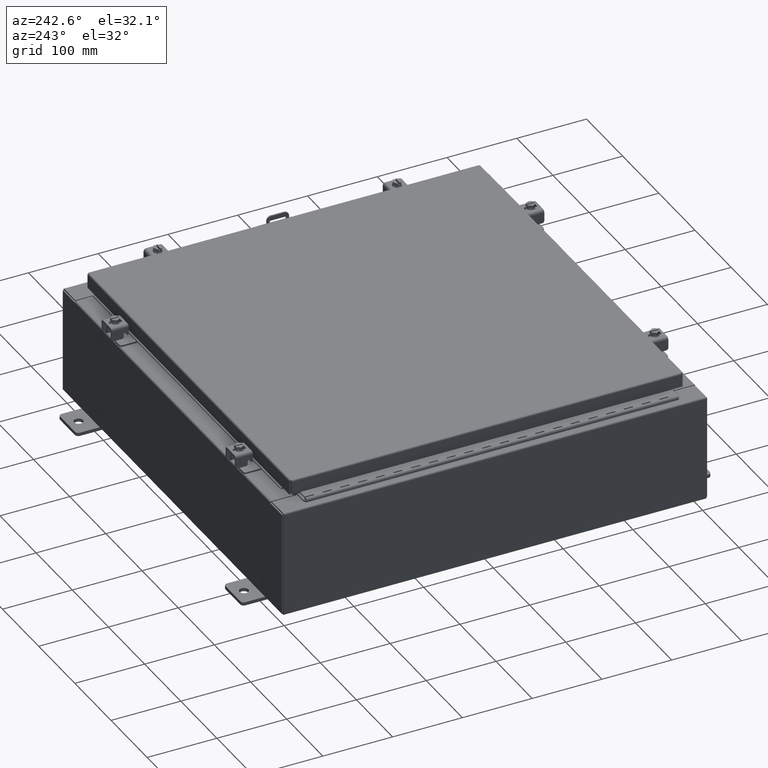
[diagram: clean part render]
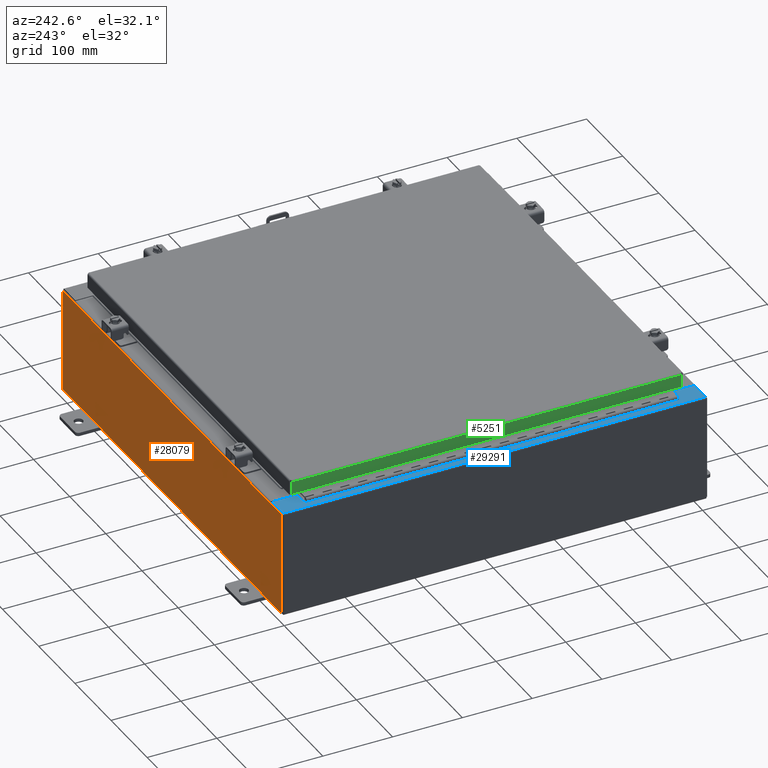
[diagram: same view with three faces highlighted in distinct colors, each labeled with its STEP entity id]
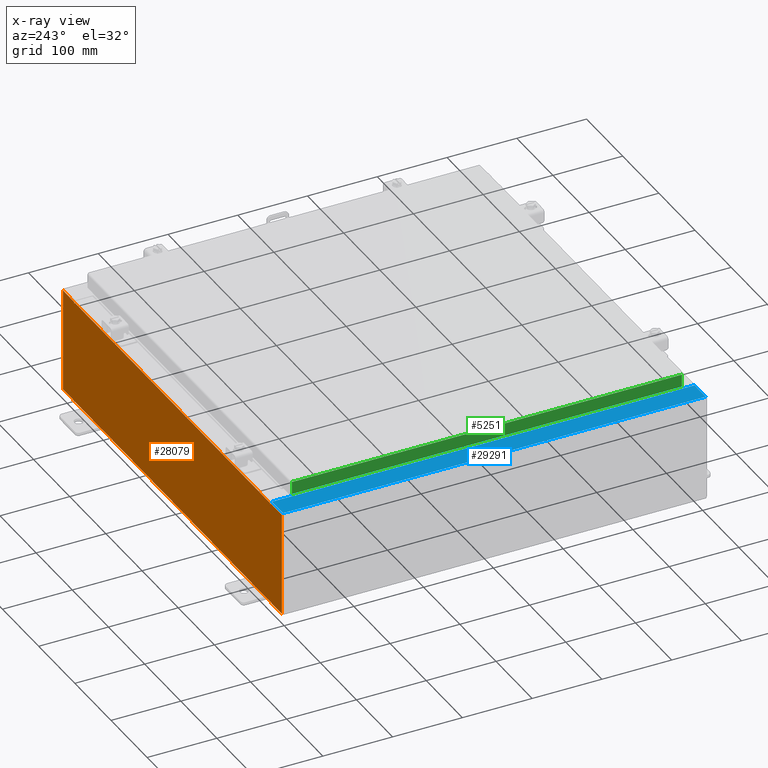
[diagram: x-ray of the same camera — body ghosted, the three highlighted faces saturated]
A machine part, auxiliary view with three faces highlighted in distinct colors.
The next image is the same camera in x-ray (body ghosted, the three faces saturated) — at least one of them is partly hidden behind the body in this view.
Their STEP definitions:

[orange] entity #28079 — the highlighted planar face has unit normal (0, -1, 0).
#603 = EDGE_CURVE ( 'NONE', #32378, #27819, #5643, .T. ) ;
#630 = CIRCLE ( 'NONE', #6769, 0.01867499999999949400 ) ;
#851 = DIRECTION ( 'NONE',  ( 0.0000000000000000000, 0.0000000000000000000, -1.000000000000000000 ) ) ;
#1754 = VERTEX_POINT ( 'NONE', #9224 ) ;
#1974 = DIRECTION ( 'NONE',  ( -0.0000000000000000000, 1.000000000000000000, -0.0000000000000000000 ) ) ;
#2557 = ORIENTED_EDGE ( 'NONE', *, *, #12558, .T. ) ;
#2664 = DIRECTION ( 'NONE',  ( 0.0000000000000000000, 0.0000000000000000000, 1.000000000000000000 ) ) ;
#3406 = EDGE_CURVE ( 'NONE', #3450, #27630, #17485, .T. ) ;
#3415 = EDGE_CURVE ( 'NONE', #30876, #10852, #10861, .T. ) ;
#3450 = VERTEX_POINT ( 'NONE', #7106 ) ;
#3793 = EDGE_CURVE ( 'NONE', #10852, #26741, #630, .T. ) ;
#3868 = LINE ( 'NONE', #12191, #4650 ) ;
#4433 = VECTOR ( 'NONE', #16633, 39.37007874015748100 ) ;
#4650 = VECTOR ( 'NONE', #14684, 39.37007874015748100 ) ;
#4669 = VERTEX_POINT ( 'NONE', #27057 ) ;
#4795 = CARTESIAN_POINT ( 'NONE',  ( -11.92530000000000000, 0.0000000000000000000, 2.925300000000000500 ) ) ;
#5393 = LINE ( 'NONE', #20900, #31251 ) ;
#5435 = FACE_OUTER_BOUND ( 'NONE', #13079, .T. ) ;
#5643 = LINE ( 'NONE', #4795, #31491 ) ;
#5761 = VECTOR ( 'NONE', #31268, 39.37007874015748100 ) ;
#5955 = CARTESIAN_POINT ( 'NONE',  ( 10.67455000000000200, 0.0000000000000000000, 2.925300000000000500 ) ) ;
#6769 = AXIS2_PLACEMENT_3D ( 'NONE', #11051, #28566, #13562 ) ;
#7106 = CARTESIAN_POINT ( 'NONE',  ( -10.63720000000000400, -0.0000000000000000000, 2.874950000000000600 ) ) ;
#7357 = ORIENTED_EDGE ( 'NONE', *, *, #8192, .F. ) ;
#7386 = DIRECTION ( 'NONE',  ( -0.0000000000000000000, -0.0000000000000000000, 1.000000000000000000 ) ) ;
#8192 = EDGE_CURVE ( 'NONE', #26741, #9663, #14114, .T. ) ;
#8733 = LINE ( 'NONE', #9923, #21275 ) ;
#8998 = ORIENTED_EDGE ( 'NONE', *, *, #31282, .F. ) ;
#9224 = CARTESIAN_POINT ( 'NONE',  ( -11.92530000000000000, 0.0000000000000000000, -2.925299999999999600 ) ) ;
#9246 = ORIENTED_EDGE ( 'NONE', *, *, #3793, .F. ) ;
#9269 = LINE ( 'NONE', #17657, #15145 ) ;
#9458 = ORIENTED_EDGE ( 'NONE', *, *, #24867, .T. ) ;
#9663 = VERTEX_POINT ( 'NONE', #13102 ) ;
#9923 = CARTESIAN_POINT ( 'NONE',  ( -11.92530000000000000, 0.0000000000000000000, 2.925300000000000500 ) ) ;
#10570 = PLANE ( 'NONE',  #30173 ) ;
#10852 = VERTEX_POINT ( 'NONE', #14648 ) ;
#10861 = LINE ( 'NONE', #13904, #23374 ) ;
#11051 = CARTESIAN_POINT ( 'NONE',  ( 10.65587500000000200, 0.0000000000000000000, 2.874950000000000600 ) ) ;
#11273 = CARTESIAN_POINT ( 'NONE',  ( 11.92530000000000000, 0.0000000000000000000, -2.925299999999999600 ) ) ;
#11537 = EDGE_CURVE ( 'NONE', #1754, #32378, #8733, .T. ) ;
#11853 = CARTESIAN_POINT ( 'NONE',  ( 10.63720000000000400, 0.0000000000000000000, 0.0000000000000000000 ) ) ;
#11981 = CARTESIAN_POINT ( 'NONE',  ( -10.67455000000000200, 0.0000000000000000000, 2.925300000000000500 ) ) ;
#12191 = CARTESIAN_POINT ( 'NONE',  ( -11.92530000000000000, 0.0000000000000000000, 2.925300000000000500 ) ) ;
#12282 = CARTESIAN_POINT ( 'NONE',  ( 10.63720000000000400, 0.0000000000000000000, 2.874950000000000600 ) ) ;
#12376 = DIRECTION ( 'NONE',  ( 1.000000000000000000, 0.0000000000000000000, 0.0000000000000000000 ) ) ;
#12558 = EDGE_CURVE ( 'NONE', #4669, #9663, #26276, .T. ) ;
#12957 = ORIENTED_EDGE ( 'NONE', *, *, #21046, .T. ) ;
#13075 = DIRECTION ( 'NONE',  ( 0.0000000000000000000, -0.0000000000000000000, -1.000000000000000000 ) ) ;
#13079 = EDGE_LOOP ( 'NONE', ( #8998, #22380, #25341, #2557, #7357, #9246, #20701, #12957, #9458, #31858, #13166, #17547 ) ) ;
#13102 = CARTESIAN_POINT ( 'NONE',  ( 10.63720000000000400, 0.0000000000000000000, 2.912300000000000600 ) ) ;
#13166 = ORIENTED_EDGE ( 'NONE', *, *, #11537, .T. ) ;
#13562 = DIRECTION ( 'NONE',  ( 0.0000000000000000000, 0.0000000000000000000, -1.000000000000000000 ) ) ;
#13904 = CARTESIAN_POINT ( 'NONE',  ( 10.67454999999987700, -0.0000000000000000000, -4.633366117301834200E-013 ) ) ;
#14114 = LINE ( 'NONE', #11853, #25857 ) ;
#14648 = CARTESIAN_POINT ( 'NONE',  ( 10.67455000000000200, 0.0000000000000000000, 2.874950000000000600 ) ) ;
#14684 = DIRECTION ( 'NONE',  ( 1.000000000000000000, 0.0000000000000000000, 0.0000000000000000000 ) ) ;
#15145 = VECTOR ( 'NONE', #2664, 39.37007874015748100 ) ;
#15366 = CARTESIAN_POINT ( 'NONE',  ( 0.0000000000000000000, 0.0000000000000000000, 0.0000000000000000000 ) ) ;
#16633 = DIRECTION ( 'NONE',  ( 0.0000000000000000000, 0.0000000000000000000, -1.000000000000000000 ) ) ;
#16964 = CARTESIAN_POINT ( 'NONE',  ( -10.65587500000000200, 0.0000000000000000000, 2.874950000000000600 ) ) ;
#17485 = CIRCLE ( 'NONE', #21464, 0.01867499999999949400 ) ;
#17547 = ORIENTED_EDGE ( 'NONE', *, *, #603, .T. ) ;
#17657 = CARTESIAN_POINT ( 'NONE',  ( -10.67455000000000200, -0.0000000000000000000, 0.0000000000000000000 ) ) ;
#19503 = DIRECTION ( 'NONE',  ( 0.0000000000000000000, 0.0000000000000000000, -1.000000000000000000 ) ) ;
#20701 = ORIENTED_EDGE ( 'NONE', *, *, #3415, .F. ) ;
#20900 = CARTESIAN_POINT ( 'NONE',  ( -10.63720000000000400, -0.0000000000000000000, 0.0000000000000000000 ) ) ;
#21046 = EDGE_CURVE ( 'NONE', #30876, #32301, #3868, .T. ) ;
#21275 = VECTOR ( 'NONE', #7386, 39.37007874015748100 ) ;
#21351 = CARTESIAN_POINT ( 'NONE',  ( -10.63720000000000400, 1.024442997624098700E-016, 2.912300000000000600 ) ) ;
#21464 = AXIS2_PLACEMENT_3D ( 'NONE', #16964, #1974, #19503 ) ;
#21948 = EDGE_CURVE ( 'NONE', #4669, #3450, #5393, .T. ) ;
#22105 = CARTESIAN_POINT ( 'NONE',  ( 11.92530000000000000, 0.0000000000000000000, 2.925300000000000500 ) ) ;
#22184 = EDGE_CURVE ( 'NONE', #23268, #1754, #24966, .T. ) ;
#22380 = ORIENTED_EDGE ( 'NONE', *, *, #3406, .F. ) ;
#22423 = CARTESIAN_POINT ( 'NONE',  ( -11.92530000000000000, 0.0000000000000000000, 2.925300000000000500 ) ) ;
#23268 = VERTEX_POINT ( 'NONE', #11273 ) ;
#23374 = VECTOR ( 'NONE', #31978, 39.37007874015748100 ) ;
#24191 = CARTESIAN_POINT ( 'NONE',  ( 11.92530000000000000, 0.0000000000000000000, 2.925300000000000500 ) ) ;
#24420 = LINE ( 'NONE', #24191, #4433 ) ;
#24867 = EDGE_CURVE ( 'NONE', #32301, #23268, #24420, .T. ) ;
#24966 = LINE ( 'NONE', #26424, #5761 ) ;
#25341 = ORIENTED_EDGE ( 'NONE', *, *, #21948, .F. ) ;
#25513 = VECTOR ( 'NONE', #28896, 39.37007874015748100 ) ;
#25857 = VECTOR ( 'NONE', #26827, 39.37007874015748100 ) ;
#26276 = LINE ( 'NONE', #21351, #25513 ) ;
#26315 = CARTESIAN_POINT ( 'NONE',  ( -10.67455000000000200, 0.0000000000000000000, 2.874950000000000600 ) ) ;
#26424 = CARTESIAN_POINT ( 'NONE',  ( -11.92530000000000000, 0.0000000000000000000, -2.925299999999999600 ) ) ;
#26741 = VERTEX_POINT ( 'NONE', #12282 ) ;
#26827 = DIRECTION ( 'NONE',  ( 0.0000000000000000000, 0.0000000000000000000, 1.000000000000000000 ) ) ;
#27057 = CARTESIAN_POINT ( 'NONE',  ( -10.63720000000000400, 1.024442997624098700E-016, 2.912300000000000600 ) ) ;
#27630 = VERTEX_POINT ( 'NONE', #26315 ) ;
#27819 = VERTEX_POINT ( 'NONE', #11981 ) ;
#28074 = DIRECTION ( 'NONE',  ( 0.0000000000000000000, -1.000000000000000000, 0.0000000000000000000 ) ) ;
#28079 = ADVANCED_FACE ( 'NONE', ( #5435 ), #10570, .F. ) ;
#28566 = DIRECTION ( 'NONE',  ( -0.0000000000000000000, 1.000000000000000000, -0.0000000000000000000 ) ) ;
#28896 = DIRECTION ( 'NONE',  ( 1.000000000000000000, 0.0000000000000000000, 0.0000000000000000000 ) ) ;
#30173 = AXIS2_PLACEMENT_3D ( 'NONE', #15366, #28074, #13075 ) ;
#30876 = VERTEX_POINT ( 'NONE', #5955 ) ;
#31251 = VECTOR ( 'NONE', #851, 39.37007874015748100 ) ;
#31268 = DIRECTION ( 'NONE',  ( -1.000000000000000000, -0.0000000000000000000, -0.0000000000000000000 ) ) ;
#31282 = EDGE_CURVE ( 'NONE', #27630, #27819, #9269, .T. ) ;
#31491 = VECTOR ( 'NONE', #12376, 39.37007874015748100 ) ;
#31858 = ORIENTED_EDGE ( 'NONE', *, *, #22184, .T. ) ;
#31978 = DIRECTION ( 'NONE',  ( -4.340572780400004900E-014, 0.0000000000000000000, -1.000000000000000000 ) ) ;
#32301 = VERTEX_POINT ( 'NONE', #22105 ) ;
#32378 = VERTEX_POINT ( 'NONE', #22423 ) ;

[blue] entity #29291 — the highlighted planar face has unit normal (0, 0, -1).
#95 = DIRECTION ( 'NONE',  ( -3.120540565805877600E-031, 1.000000000000000000, -2.225807437035179500E-045 ) ) ;
#546 = DIRECTION ( 'NONE',  ( 1.000000000000000000, -4.379057701015053300E-047, 7.132762385546384700E-015 ) ) ;
#1191 = ORIENTED_EDGE ( 'NONE', *, *, #17588, .F. ) ;
#1311 = CARTESIAN_POINT ( 'NONE',  ( -10.69970000000002300, 10.63109999999999600, 5.925300000000008000 ) ) ;
#2357 = LINE ( 'NONE', #29328, #28214 ) ;
#2444 = DIRECTION ( 'NONE',  ( -7.132762385546384700E-015, -0.0000000000000000000, 1.000000000000000000 ) ) ;
#2541 = EDGE_LOOP ( 'NONE', ( #15011, #18675, #31249, #29808, #26825, #22844, #15091, #19177, #15598, #19971, #29746, #1191 ) ) ;
#2950 = CARTESIAN_POINT ( 'NONE',  ( -4.252457061909017700E-014, -11.92530000000000000, 5.925300000000084400 ) ) ;
#3148 = AXIS2_PLACEMENT_3D ( 'NONE', #9851, #27340, #12371 ) ;
#3277 = EDGE_CURVE ( 'NONE', #23824, #16286, #13976, .T. ) ;
#3454 = CARTESIAN_POINT ( 'NONE',  ( -4.252457061909017700E-014, 0.0000000000000000000, 5.925300000000084400 ) ) ;
#3816 = DIRECTION ( 'NONE',  ( -1.000000000000000000, 0.0000000000000000000, 0.0000000000000000000 ) ) ;
#4214 = DIRECTION ( 'NONE',  ( 1.000000000000000000, 0.0000000000000000000, 0.0000000000000000000 ) ) ;
#4590 = VERTEX_POINT ( 'NONE', #11758 ) ;
#4837 = LINE ( 'NONE', #12858, #11504 ) ;
#5159 = VECTOR ( 'NONE', #7630, 39.37007874015748100 ) ;
#5483 = VERTEX_POINT ( 'NONE', #5559 ) ;
#5559 = CARTESIAN_POINT ( 'NONE',  ( -10.69970000000002300, -11.92530000000000000, 5.925300000000008000 ) ) ;
#5962 = DIRECTION ( 'NONE',  ( -1.000000000000000000, 0.0000000000000000000, -7.132762385546384700E-015 ) ) ;
#6056 = EDGE_CURVE ( 'NONE', #9116, #16286, #4837, .T. ) ;
#6846 = DIRECTION ( 'NONE',  ( 1.000000000000000000, 0.0000000000000000000, 0.0000000000000000000 ) ) ;
#7224 = EDGE_CURVE ( 'NONE', #29651, #20407, #25150, .T. ) ;
#7377 = CARTESIAN_POINT ( 'NONE',  ( -10.71270000000002300, -10.59374999999999800, 5.925300000000008000 ) ) ;
#7630 = DIRECTION ( 'NONE',  ( -1.000000000000000000, 0.0000000000000000000, 0.0000000000000000000 ) ) ;
#7834 = VERTEX_POINT ( 'NONE', #8175 ) ;
#8175 = CARTESIAN_POINT ( 'NONE',  ( -10.75005000000002300, -10.63109999999999600, 5.925300000000008000 ) ) ;
#8545 = CARTESIAN_POINT ( 'NONE',  ( -11.91230000000002300, 11.92529999999999800, 5.925299999999999100 ) ) ;
#9116 = VERTEX_POINT ( 'NONE', #28564 ) ;
#9816 = CARTESIAN_POINT ( 'NONE',  ( -10.75005000000002300, -10.59374999999999800, 5.925300000000008000 ) ) ;
#9845 = LINE ( 'NONE', #27471, #29032 ) ;
#9851 = CARTESIAN_POINT ( 'NONE',  ( -10.75005000000002300, -10.61242499999999800, 5.925300000000008000 ) ) ;
#10122 = VERTEX_POINT ( 'NONE', #14691 ) ;
#11293 = LINE ( 'NONE', #1311, #23828 ) ;
#11504 = VECTOR ( 'NONE', #27860, 39.37007874015748100 ) ;
#11546 = LINE ( 'NONE', #27645, #17413 ) ;
#11670 = CIRCLE ( 'NONE', #3148, 0.01867499999999949400 ) ;
#11758 = CARTESIAN_POINT ( 'NONE',  ( -10.71270000000002300, 10.59374999999999800, 5.925300000000008000 ) ) ;
#12048 = CARTESIAN_POINT ( 'NONE',  ( -10.71270000000002300, 10.59374999999999800, 5.925300000000008000 ) ) ;
#12299 = CARTESIAN_POINT ( 'NONE',  ( -10.69970000000002300, -10.63109999999999800, 5.925300000000008000 ) ) ;
#12371 = DIRECTION ( 'NONE',  ( 1.000000000000000000, 0.0000000000000000000, 0.0000000000000000000 ) ) ;
#12696 = EDGE_CURVE ( 'NONE', #31707, #9116, #9845, .T. ) ;
#12858 = CARTESIAN_POINT ( 'NONE',  ( -4.252457061909017700E-014, 11.92529999999999800, 5.925300000000084400 ) ) ;
#13202 = FACE_OUTER_BOUND ( 'NONE', #2541, .T. ) ;
#13976 = LINE ( 'NONE', #8545, #21425 ) ;
#14691 = CARTESIAN_POINT ( 'NONE',  ( -10.75005000000002300, 10.63109999999999600, 5.925300000000008000 ) ) ;
#15011 = ORIENTED_EDGE ( 'NONE', *, *, #21456, .F. ) ;
#15091 = ORIENTED_EDGE ( 'NONE', *, *, #27158, .F. ) ;
#15598 = ORIENTED_EDGE ( 'NONE', *, *, #7224, .F. ) ;
#15925 = PLANE ( 'NONE',  #21999 ) ;
#16286 = VERTEX_POINT ( 'NONE', #29351 ) ;
#17413 = VECTOR ( 'NONE', #22499, 39.37007874015748100 ) ;
#17421 = CARTESIAN_POINT ( 'NONE',  ( -10.75005000000002300, 10.61242499999999800, 5.925300000000008000 ) ) ;
#17588 = EDGE_CURVE ( 'NONE', #10122, #21109, #24077, .T. ) ;
#18675 = ORIENTED_EDGE ( 'NONE', *, *, #12696, .T. ) ;
#19177 = ORIENTED_EDGE ( 'NONE', *, *, #21678, .F. ) ;
#19245 = CARTESIAN_POINT ( 'NONE',  ( -10.75005000000002300, 10.59374999999999800, 5.925300000000008000 ) ) ;
#19697 = EDGE_CURVE ( 'NONE', #4590, #29651, #20048, .T. ) ;
#19967 = DIRECTION ( 'NONE',  ( 1.000000000000000000, 0.0000000000000000000, 0.0000000000000000000 ) ) ;
#19971 = ORIENTED_EDGE ( 'NONE', *, *, #19697, .F. ) ;
#20048 = LINE ( 'NONE', #12048, #26667 ) ;
#20407 = VERTEX_POINT ( 'NONE', #9816 ) ;
#20999 = DIRECTION ( 'NONE',  ( 7.132762385546384700E-015, 0.0000000000000000000, -1.000000000000000000 ) ) ;
#21064 = LINE ( 'NONE', #19245, #22619 ) ;
#21109 = VERTEX_POINT ( 'NONE', #24880 ) ;
#21425 = VECTOR ( 'NONE', #26057, 39.37007874015748100 ) ;
#21456 = EDGE_CURVE ( 'NONE', #31707, #10122, #11293, .T. ) ;
#21678 = EDGE_CURVE ( 'NONE', #20407, #7834, #11670, .T. ) ;
#21999 = AXIS2_PLACEMENT_3D ( 'NONE', #3454, #20999, #5962 ) ;
#22499 = DIRECTION ( 'NONE',  ( -3.120540565805877600E-031, 1.000000000000000000, -2.225807437035179500E-045 ) ) ;
#22619 = VECTOR ( 'NONE', #4214, 39.37007874015748100 ) ;
#22844 = ORIENTED_EDGE ( 'NONE', *, *, #24143, .T. ) ;
#23150 = EDGE_CURVE ( 'NONE', #23824, #5483, #30792, .T. ) ;
#23824 = VERTEX_POINT ( 'NONE', #28866 ) ;
#23828 = VECTOR ( 'NONE', #3816, 39.37007874015748100 ) ;
#24077 = CIRCLE ( 'NONE', #31590, 0.01867499999999949400 ) ;
#24111 = VECTOR ( 'NONE', #546, 39.37007874015748100 ) ;
#24143 = EDGE_CURVE ( 'NONE', #5483, #31708, #11546, .T. ) ;
#24880 = CARTESIAN_POINT ( 'NONE',  ( -10.75005000000002300, 10.59374999999999800, 5.925300000000008000 ) ) ;
#25150 = LINE ( 'NONE', #27664, #5159 ) ;
#26057 = DIRECTION ( 'NONE',  ( 9.163200904511462000E-017, 1.000000000000000000, 6.535893474290396800E-031 ) ) ;
#26667 = VECTOR ( 'NONE', #29573, 39.37007874015748100 ) ;
#26825 = ORIENTED_EDGE ( 'NONE', *, *, #23150, .T. ) ;
#27158 = EDGE_CURVE ( 'NONE', #7834, #31708, #2357, .T. ) ;
#27267 = CARTESIAN_POINT ( 'NONE',  ( -10.69970000000002300, 10.63109999999999600, 5.925300000000008000 ) ) ;
#27340 = DIRECTION ( 'NONE',  ( -7.132762385546384700E-015, -0.0000000000000000000, 1.000000000000000000 ) ) ;
#27471 = CARTESIAN_POINT ( 'NONE',  ( -10.69970000000002300, -3.338884789195309000E-030, 5.925300000000008000 ) ) ;
#27645 = CARTESIAN_POINT ( 'NONE',  ( -10.69970000000002300, -3.338884789195309000E-030, 5.925300000000008000 ) ) ;
#27664 = CARTESIAN_POINT ( 'NONE',  ( -10.71270000000002300, -10.59374999999999800, 5.925300000000008000 ) ) ;
#27860 = DIRECTION ( 'NONE',  ( -1.000000000000000000, -4.084933421431495300E-032, -7.132762385546384700E-015 ) ) ;
#28214 = VECTOR ( 'NONE', #6846, 39.37007874015748100 ) ;
#28564 = CARTESIAN_POINT ( 'NONE',  ( -10.69970000000002300, 11.92529999999999800, 5.925300000000008000 ) ) ;
#28866 = CARTESIAN_POINT ( 'NONE',  ( -11.91230000000002500, -11.92530000000000000, 5.925299999999999100 ) ) ;
#28956 = EDGE_CURVE ( 'NONE', #21109, #4590, #21064, .T. ) ;
#29032 = VECTOR ( 'NONE', #95, 39.37007874015748100 ) ;
#29291 = ADVANCED_FACE ( 'NONE', ( #13202 ), #15925, .F. ) ;
#29328 = CARTESIAN_POINT ( 'NONE',  ( -10.75005000000002300, -10.63109999999999600, 5.925300000000008000 ) ) ;
#29351 = CARTESIAN_POINT ( 'NONE',  ( -11.91230000000002500, 11.92529999999999800, 5.925299999999999100 ) ) ;
#29573 = DIRECTION ( 'NONE',  ( -0.0000000000000000000, -1.000000000000000000, -0.0000000000000000000 ) ) ;
#29651 = VERTEX_POINT ( 'NONE', #7377 ) ;
#29746 = ORIENTED_EDGE ( 'NONE', *, *, #28956, .F. ) ;
#29808 = ORIENTED_EDGE ( 'NONE', *, *, #3277, .F. ) ;
#30792 = LINE ( 'NONE', #2950, #24111 ) ;
#31249 = ORIENTED_EDGE ( 'NONE', *, *, #6056, .T. ) ;
#31590 = AXIS2_PLACEMENT_3D ( 'NONE', #17421, #2444, #19967 ) ;
#31707 = VERTEX_POINT ( 'NONE', #27267 ) ;
#31708 = VERTEX_POINT ( 'NONE', #12299 ) ;

[green] entity #5251 — the highlighted planar face has unit normal (1, 0, -0).
#867 = CARTESIAN_POINT ( 'NONE',  ( -11.07800000000000300, 11.00515786437626400, 1.443334371086815900E-013 ) ) ;
#2108 = FACE_OUTER_BOUND ( 'NONE', #12855, .T. ) ;
#2879 = VECTOR ( 'NONE', #14445, 39.37007874015748100 ) ;
#3055 = DIRECTION ( 'NONE',  ( -9.849821502304897400E-017, 1.000000000000000000, 1.231227687788112100E-016 ) ) ;
#3761 = EDGE_CURVE ( 'NONE', #14589, #13700, #7278, .T. ) ;
#5251 = ADVANCED_FACE ( 'NONE', ( #2108 ), #21992, .F. ) ;
#5382 = ORIENTED_EDGE ( 'NONE', *, *, #31156, .F. ) ;
#6461 = ORIENTED_EDGE ( 'NONE', *, *, #3761, .T. ) ;
#7278 = LINE ( 'NONE', #867, #20628 ) ;
#8913 = VECTOR ( 'NONE', #3055, 39.37007874015748100 ) ;
#12093 = CARTESIAN_POINT ( 'NONE',  ( -11.07800000000000300, -11.09400000000000100, -0.08769999999999982000 ) ) ;
#12139 = DIRECTION ( 'NONE',  ( -6.068244883885633100E-015, 0.0000000000000000000, -1.000000000000000000 ) ) ;
#12855 = EDGE_LOOP ( 'NONE', ( #5382, #6461, #25363, #16823 ) ) ;
#13700 = VERTEX_POINT ( 'NONE', #22686 ) ;
#14445 = DIRECTION ( 'NONE',  ( -6.068244883885633100E-015, 6.982962677686265900E-015, -1.000000000000000000 ) ) ;
#14589 = VERTEX_POINT ( 'NONE', #19117 ) ;
#16823 = ORIENTED_EDGE ( 'NONE', *, *, #24937, .F. ) ;
#17548 = CARTESIAN_POINT ( 'NONE',  ( -11.07800000000000300, -11.00515786437627200, -0.08769999999999500400 ) ) ;
#18065 = CARTESIAN_POINT ( 'NONE',  ( -11.07800000000000700, -11.09400000000000100, -0.7949999999999997100 ) ) ;
#18285 = VECTOR ( 'NONE', #27065, 39.37007874015748100 ) ;
#19117 = CARTESIAN_POINT ( 'NONE',  ( -11.07800000000000500, 11.00515786437626400, -0.08769999999999764100 ) ) ;
#19871 = LINE ( 'NONE', #12093, #18285 ) ;
#20479 = AXIS2_PLACEMENT_3D ( 'NONE', #22104, #27114, #12139 ) ;
#20628 = VECTOR ( 'NONE', #20923, 39.37007874015748100 ) ;
#20923 = DIRECTION ( 'NONE',  ( -6.068244883885633100E-015, 6.982962677686265900E-015, -1.000000000000000000 ) ) ;
#21992 = PLANE ( 'NONE',  #20479 ) ;
#22104 = CARTESIAN_POINT ( 'NONE',  ( -11.07800000000000300, -1.091163226025345200E-015, 6.748483047969663100E-014 ) ) ;
#22686 = CARTESIAN_POINT ( 'NONE',  ( -11.07800000000000800, 11.00515786437626900, -0.7949999999999969300 ) ) ;
#24937 = EDGE_CURVE ( 'NONE', #31261, #30597, #29542, .T. ) ;
#25363 = ORIENTED_EDGE ( 'NONE', *, *, #28700, .F. ) ;
#27065 = DIRECTION ( 'NONE',  ( 9.849821502304913400E-017, -1.000000000000000000, -9.849821502304897400E-017 ) ) ;
#27114 = DIRECTION ( 'NONE',  ( 1.000000000000000000, 9.849821502304972600E-017, -6.068244883885633100E-015 ) ) ;
#27446 = CARTESIAN_POINT ( 'NONE',  ( -11.07800000000000700, -11.00515786437626700, -0.7949999999999997100 ) ) ;
#28128 = LINE ( 'NONE', #18065, #8913 ) ;
#28700 = EDGE_CURVE ( 'NONE', #30597, #13700, #28128, .T. ) ;
#29474 = CARTESIAN_POINT ( 'NONE',  ( -11.07800000000000300, -11.00515786437627100, -0.07469999999999954500 ) ) ;
#29542 = LINE ( 'NONE', #29474, #2879 ) ;
#30597 = VERTEX_POINT ( 'NONE', #27446 ) ;
#31156 = EDGE_CURVE ( 'NONE', #14589, #31261, #19871, .T. ) ;
#31261 = VERTEX_POINT ( 'NONE', #17548 ) ;